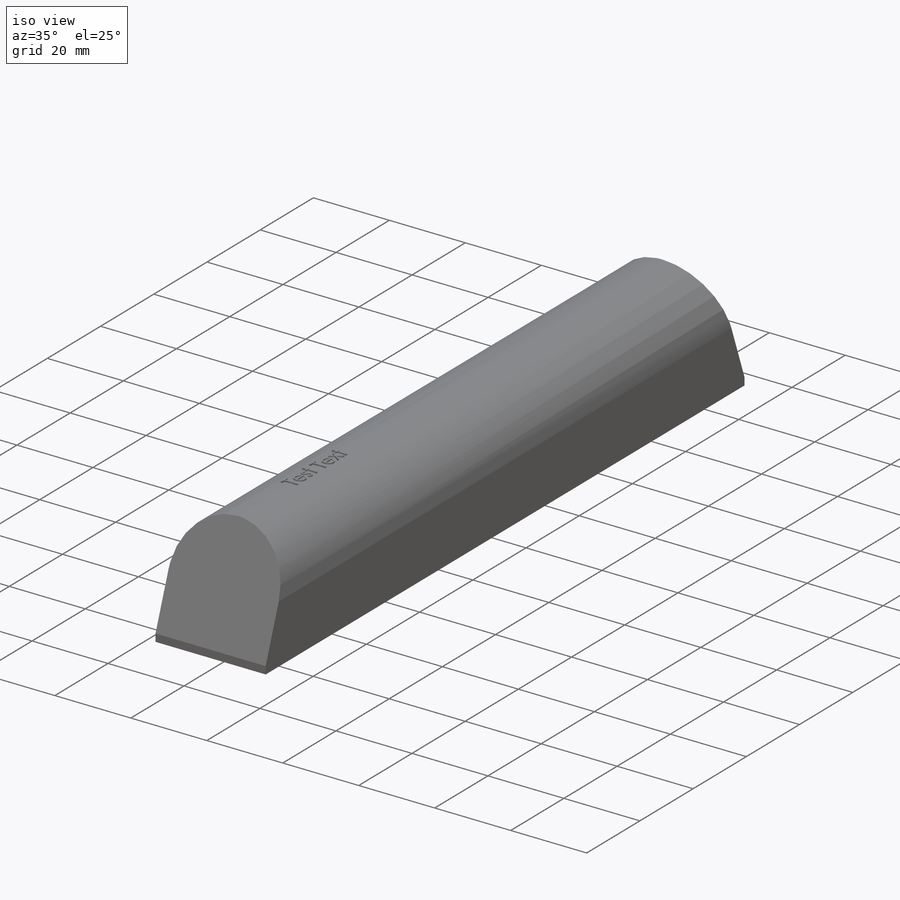
[diagram: iso view]
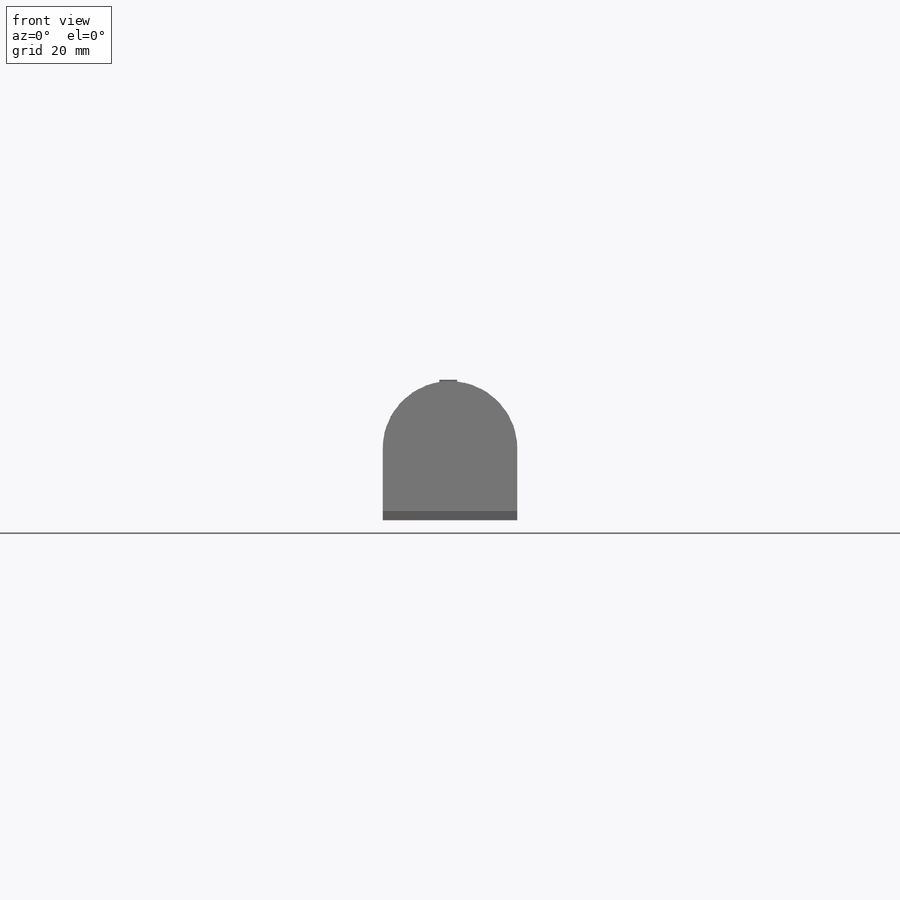
[diagram: front view]
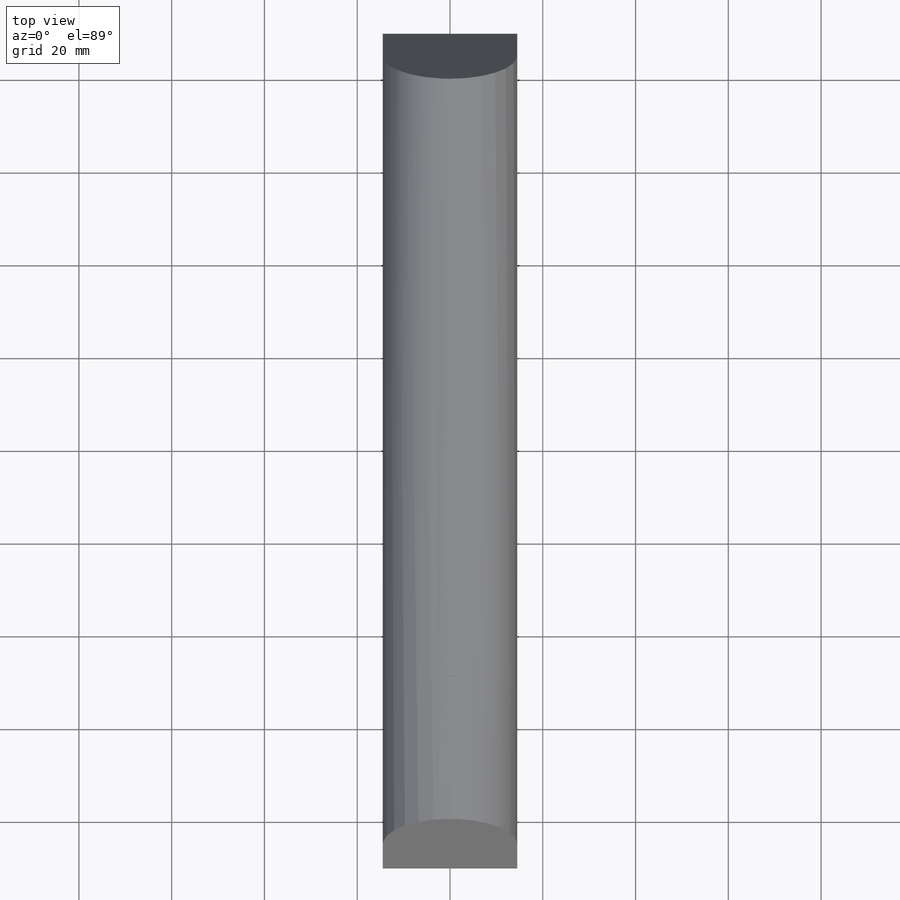
[diagram: top view]
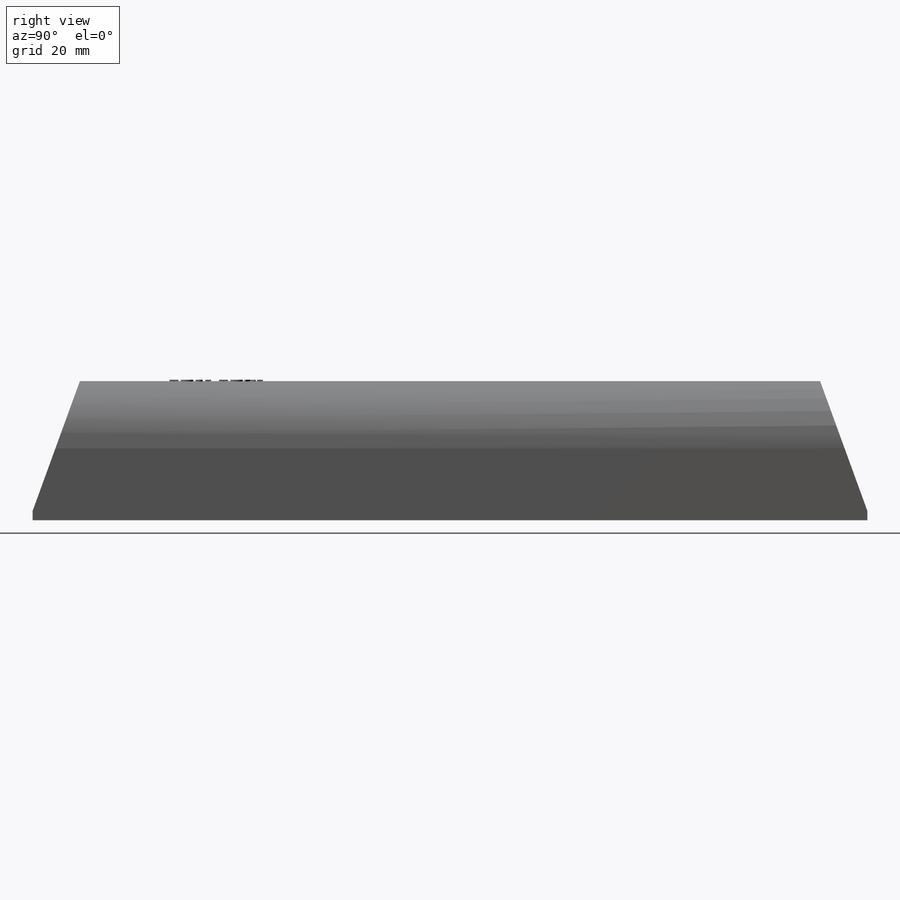
[diagram: right view]
SOLIDWORKS PART (.sldprt)
format: sldprt  version: not decoded by parser v0  size: 391,168 bytes
history: native  units: mm
features: plane x5, sketch x3, extrude x2, material x1, cut_extrude x1, mirror x1, fillet x1 (+8 scaffold rows collapsed)
feature tree (22):
  scaffold x8  (default folders/planes/origin — collapsed)
  material  "Material <nicht festgelegt>"
  plane  "Ebene vorne"
  plane  "Ebene oben"
  plane  "Ebene rechts"
  sketch  "Skizze1"  dims[D1=29.0mm D2=180.0mm]
  extrude  "Aufsatz-Linear austragen1"  Depth=30mm
  sketch  "Skizze2"  dims[c1.D1=180.0mm c2.D1=70.0deg c3.D1=2.0mm c3.D2=~29.371386mm c4.D2=70.0deg c4.D3=2.0mm]
  cut_extrude  "Schnitt-Linear austragen1"  [1 undecoded]
  mirror  "Spiegeln1"
  fillet  "Verrundung1"  Radius=14.5mm
  plane  "Ebene2"  Offset=2mm
  plane  "Ebene3"  Offset=30.3mm
  sketch  "Skizze28"  dims[D1=1.5mm D2=3.0mm]
  extrude  "Aufsatz-Linear austragen9"  [1 undecoded]
decode coverage: 5 of 8 modeling features carry decoded parameters
note: ~ marks probable driven/reference dimensions
note: 2 parameter values undecoded
note: suppression state not decoded; provenance and decode notes live in map.json
